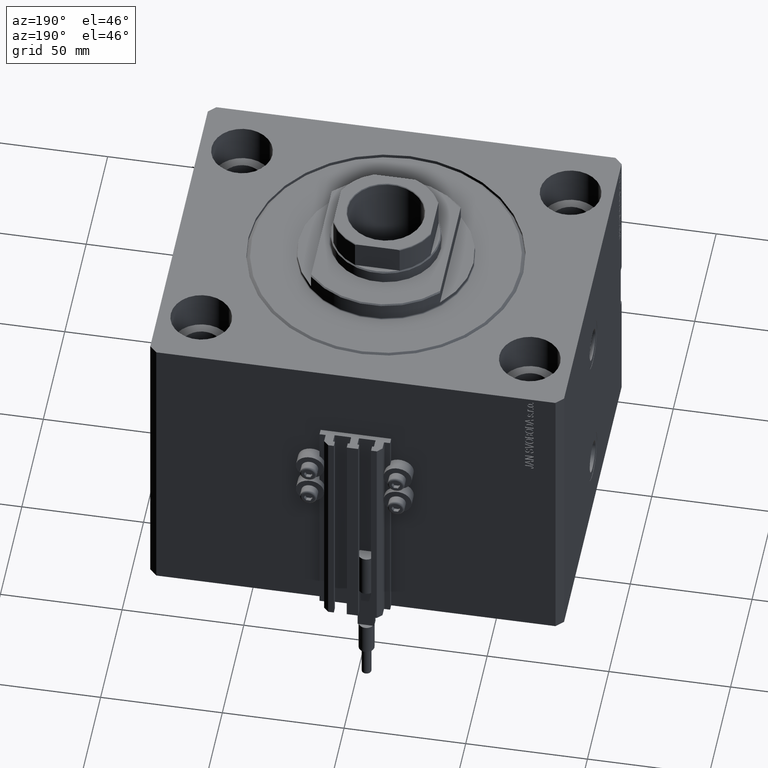
[diagram: clean part render]
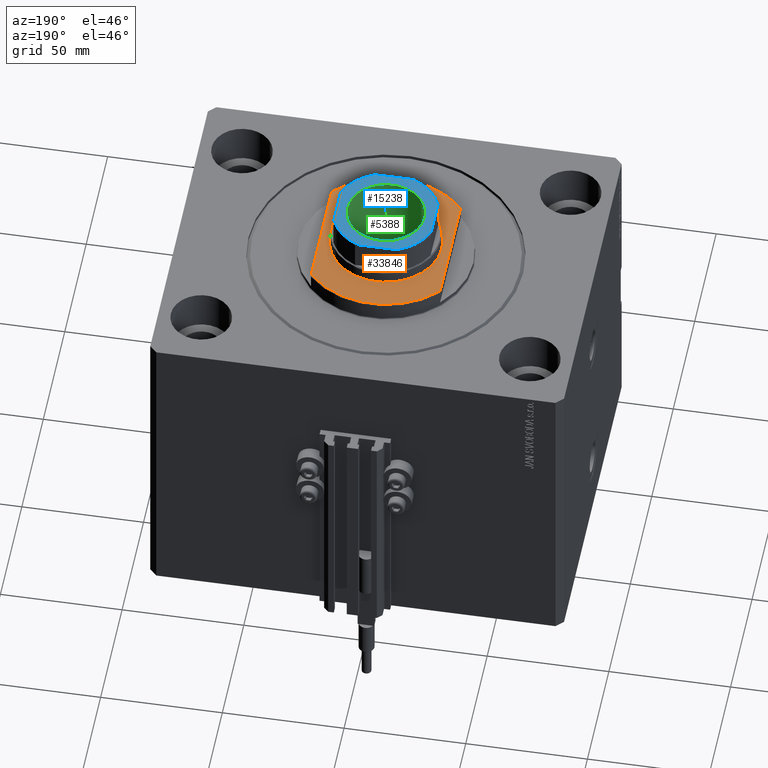
[diagram: same view with three faces highlighted in distinct colors, each labeled with its STEP entity id]
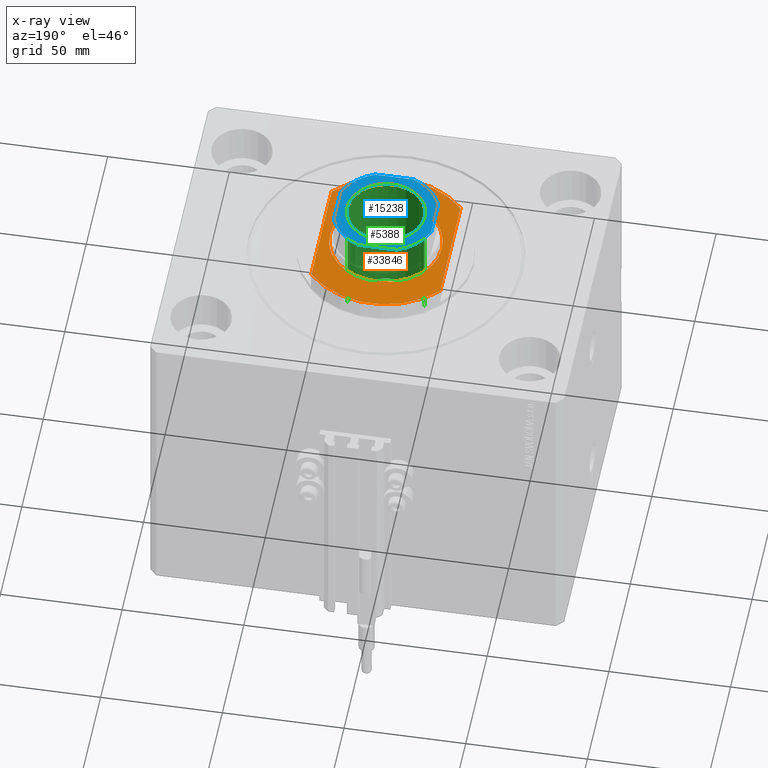
[diagram: x-ray of the same camera — body ghosted, the three highlighted faces saturated]
A machine part, auxiliary view with three faces highlighted in distinct colors.
The next image is the same camera in x-ray (body ghosted, the three faces saturated) — at least one of them is partly hidden behind the body in this view.
Their STEP definitions:

[orange] entity #33846 — the highlighted planar face has unit normal (0, 0, 1).
#3 = DIRECTION ( 'NONE',  ( -1.000000000000000000, 0.000000000000000000, 0.000000000000000000 ) ) ;
#1319 = CARTESIAN_POINT ( 'NONE',  ( -26.50000000000000711, -23.62202362203537476, -8.000000000000000000 ) ) ;
#2790 = VERTEX_POINT ( 'NONE', #43308 ) ;
#2889 = AXIS2_PLACEMENT_3D ( 'NONE', #12269, #5068, #13274 ) ;
#3676 = EDGE_LOOP ( 'NONE', ( #37982, #36277 ) ) ;
#5068 = DIRECTION ( 'NONE',  ( -0.000000000000000000, -0.000000000000000000, 1.000000000000000000 ) ) ;
#5283 = VECTOR ( 'NONE', #23781, 1000.000000000000000 ) ;
#5318 = AXIS2_PLACEMENT_3D ( 'NONE', #23989, #28210, #43403 ) ;
#6399 = DIRECTION ( 'NONE',  ( 0.000000000000000000, 0.000000000000000000, -1.000000000000000000 ) ) ;
#7327 = ORIENTED_EDGE ( 'NONE', *, *, #31949, .F. ) ;
#8385 = AXIS2_PLACEMENT_3D ( 'NONE', #36825, #10676, #14412 ) ;
#8567 = EDGE_CURVE ( 'NONE', #46461, #46454, #19574, .T. ) ;
#9284 = CIRCLE ( 'NONE', #41855, 35.49999999999996447 ) ;
#9834 = EDGE_CURVE ( 'NONE', #13793, #10834, #9284, .T. ) ;
#10676 = DIRECTION ( 'NONE',  ( -0.000000000000000000, -0.000000000000000000, 1.000000000000000000 ) ) ;
#10761 = CIRCLE ( 'NONE', #8385, 23.00000000000001776 ) ;
#10831 = CIRCLE ( 'NONE', #37853, 35.49999999999996447 ) ;
#10834 = VERTEX_POINT ( 'NONE', #1319 ) ;
#12264 = PLANE ( 'NONE',  #5318 ) ;
#12269 = CARTESIAN_POINT ( 'NONE',  ( 0.000000000000000000, 0.000000000000000000, -8.000000000000000000 ) ) ;
#12771 = FACE_OUTER_BOUND ( 'NONE', #46521, .T. ) ;
#13274 = DIRECTION ( 'NONE',  ( -1.000000000000000000, 0.000000000000000000, 0.000000000000000000 ) ) ;
#13546 = CARTESIAN_POINT ( 'NONE',  ( -26.50000000000000000, -36.36963018783666257, -8.000000000000000000 ) ) ;
#13793 = VERTEX_POINT ( 'NONE', #20600 ) ;
#14412 = DIRECTION ( 'NONE',  ( -1.000000000000000000, 0.000000000000000000, 0.000000000000000000 ) ) ;
#17590 = DIRECTION ( 'NONE',  ( -1.000000000000000000, 0.000000000000000000, 0.000000000000000000 ) ) ;
#17890 = CARTESIAN_POINT ( 'NONE',  ( 26.50000000000000000, 23.62202362203536765, -8.000000000000000000 ) ) ;
#19574 = CIRCLE ( 'NONE', #2889, 23.00000000000001776 ) ;
#20166 = ORIENTED_EDGE ( 'NONE', *, *, #31830, .T. ) ;
#20600 = CARTESIAN_POINT ( 'NONE',  ( 26.50000000000000000, -23.62202362203536765, -8.000000000000000000 ) ) ;
#21508 = DIRECTION ( 'NONE',  ( -0.000000000000000000, -1.000000000000000000, -0.000000000000000000 ) ) ;
#23781 = DIRECTION ( 'NONE',  ( 0.000000000000000000, -1.000000000000000000, -0.000000000000000000 ) ) ;
#23989 = CARTESIAN_POINT ( 'NONE',  ( 0.000000000000000000, 0.000000000000000000, -8.000000000000000000 ) ) ;
#27785 = ORIENTED_EDGE ( 'NONE', *, *, #32498, .T. ) ;
#28210 = DIRECTION ( 'NONE',  ( 0.000000000000000000, 0.000000000000000000, -1.000000000000000000 ) ) ;
#29748 = EDGE_CURVE ( 'NONE', #46454, #46461, #10761, .T. ) ;
#31830 = EDGE_CURVE ( 'NONE', #37996, #13793, #43440, .T. ) ;
#31949 = EDGE_CURVE ( 'NONE', #2790, #10834, #47658, .T. ) ;
#32498 = EDGE_CURVE ( 'NONE', #2790, #37996, #10831, .T. ) ;
#32633 = CARTESIAN_POINT ( 'NONE',  ( 0.000000000000000000, 0.000000000000000000, -8.000000000000000000 ) ) ;
#33269 = CARTESIAN_POINT ( 'NONE',  ( 23.00000000000001776, 2.816687638038914718E-15, -8.000000000000000000 ) ) ;
#33846 = ADVANCED_FACE ( 'NONE', ( #47118, #12771 ), #12264, .T. ) ;
#34105 = DIRECTION ( 'NONE',  ( 0.000000000000000000, 0.000000000000000000, -1.000000000000000000 ) ) ;
#36277 = ORIENTED_EDGE ( 'NONE', *, *, #29748, .T. ) ;
#36825 = CARTESIAN_POINT ( 'NONE',  ( 0.000000000000000000, 0.000000000000000000, -8.000000000000000000 ) ) ;
#37853 = AXIS2_PLACEMENT_3D ( 'NONE', #44962, #6399, #17590 ) ;
#37982 = ORIENTED_EDGE ( 'NONE', *, *, #8567, .T. ) ;
#37996 = VERTEX_POINT ( 'NONE', #17890 ) ;
#40969 = CARTESIAN_POINT ( 'NONE',  ( -23.00000000000001776, 0.000000000000000000, -8.000000000000000000 ) ) ;
#41855 = AXIS2_PLACEMENT_3D ( 'NONE', #32633, #34105, #3 ) ;
#43308 = CARTESIAN_POINT ( 'NONE',  ( -26.50000000000000000, 23.62202362203536765, -8.000000000000000000 ) ) ;
#43403 = DIRECTION ( 'NONE',  ( -1.000000000000000000, 0.000000000000000000, -0.000000000000000000 ) ) ;
#43440 = LINE ( 'NONE', #46667, #5283 ) ;
#43445 = ORIENTED_EDGE ( 'NONE', *, *, #9834, .T. ) ;
#44220 = VECTOR ( 'NONE', #21508, 1000.000000000000000 ) ;
#44962 = CARTESIAN_POINT ( 'NONE',  ( 0.000000000000000000, 0.000000000000000000, -8.000000000000000000 ) ) ;
#46454 = VERTEX_POINT ( 'NONE', #33269 ) ;
#46461 = VERTEX_POINT ( 'NONE', #40969 ) ;
#46521 = EDGE_LOOP ( 'NONE', ( #27785, #20166, #43445, #7327 ) ) ;
#46667 = CARTESIAN_POINT ( 'NONE',  ( 26.50000000000000000, -36.36963018783666257, -8.000000000000000000 ) ) ;
#47118 = FACE_BOUND ( 'NONE', #3676, .T. ) ;
#47658 = LINE ( 'NONE', #13546, #44220 ) ;

[blue] entity #15238 — the highlighted planar face has unit normal (0, 0, 1).
#321 = VECTOR ( 'NONE', #9315, 1000.000000000000000 ) ;
#379 = EDGE_CURVE ( 'NONE', #34334, #15274, #47395, .T. ) ;
#2142 = CARTESIAN_POINT ( 'NONE',  ( 20.00000000000000000, 7.889866919029748793, 126.1000000000000227 ) ) ;
#3726 = CARTESIAN_POINT ( 'NONE',  ( -20.00000000000000355, 20.00000000000000000, 126.1000000000000227 ) ) ;
#3923 = DIRECTION ( 'NONE',  ( 1.000000000000000000, 0.000000000000000000, 0.000000000000000000 ) ) ;
#4586 = VERTEX_POINT ( 'NONE', #16573 ) ;
#4641 = CARTESIAN_POINT ( 'NONE',  ( -20.00000000000000355, 20.00000000000000000, 126.1000000000000227 ) ) ;
#5019 = EDGE_CURVE ( 'NONE', #18066, #33093, #21928, .T. ) ;
#5396 = CARTESIAN_POINT ( 'NONE',  ( -20.00000000000000355, -7.889866919029736358, 126.1000000000000227 ) ) ;
#5532 = ORIENTED_EDGE ( 'NONE', *, *, #48096, .T. ) ;
#5832 = LINE ( 'NONE', #14012, #37139 ) ;
#6433 = DIRECTION ( 'NONE',  ( 1.000000000000000000, 0.000000000000000000, 0.000000000000000000 ) ) ;
#6854 = PLANE ( 'NONE',  #42852 ) ;
#7627 = LINE ( 'NONE', #4641, #29896 ) ;
#7940 = LINE ( 'NONE', #3726, #31346 ) ;
#8633 = ORIENTED_EDGE ( 'NONE', *, *, #5019, .T. ) ;
#8779 = ORIENTED_EDGE ( 'NONE', *, *, #16163, .T. ) ;
#9061 = DIRECTION ( 'NONE',  ( -0.000000000000000000, 0.000000000000000000, 1.000000000000000000 ) ) ;
#9315 = DIRECTION ( 'NONE',  ( 1.000000000000000000, 0.000000000000000000, 0.000000000000000000 ) ) ;
#9462 = VERTEX_POINT ( 'NONE', #5396 ) ;
#10345 = CARTESIAN_POINT ( 'NONE',  ( 0.000000000000000000, 0.000000000000000000, 126.1000000000000227 ) ) ;
#10713 = EDGE_CURVE ( 'NONE', #39298, #18066, #5832, .T. ) ;
#10818 = VERTEX_POINT ( 'NONE', #12234 ) ;
#10889 = CARTESIAN_POINT ( 'NONE',  ( 0.000000000000000000, 0.000000000000000000, 126.1000000000000227 ) ) ;
#11356 = DIRECTION ( 'NONE',  ( -1.000000000000000000, -0.000000000000000000, -0.000000000000000000 ) ) ;
#12234 = CARTESIAN_POINT ( 'NONE',  ( -16.04999999999997939, 1.965558112631499443E-15, 126.1000000000000227 ) ) ;
#12806 = ORIENTED_EDGE ( 'NONE', *, *, #31114, .T. ) ;
#13158 = DIRECTION ( 'NONE',  ( -0.000000000000000000, 0.000000000000000000, 1.000000000000000000 ) ) ;
#13358 = DIRECTION ( 'NONE',  ( 1.000000000000000000, 0.000000000000000000, 0.000000000000000000 ) ) ;
#13504 = CARTESIAN_POINT ( 'NONE',  ( 0.000000000000000000, 0.000000000000000000, 126.1000000000000227 ) ) ;
#13768 = CARTESIAN_POINT ( 'NONE',  ( -20.00000000000000000, -20.00000000000000000, 126.1000000000000227 ) ) ;
#14012 = CARTESIAN_POINT ( 'NONE',  ( 19.99999999999999645, 20.00000000000000000, 126.1000000000000227 ) ) ;
#15238 = ADVANCED_FACE ( 'NONE', ( #45184, #34224 ), #6854, .T. ) ;
#15274 = VERTEX_POINT ( 'NONE', #48919 ) ;
#15646 = ORIENTED_EDGE ( 'NONE', *, *, #10713, .T. ) ;
#16163 = EDGE_CURVE ( 'NONE', #4586, #10818, #44577, .T. ) ;
#16573 = CARTESIAN_POINT ( 'NONE',  ( 16.04999999999997939, 0.000000000000000000, 126.1000000000000227 ) ) ;
#16809 = CARTESIAN_POINT ( 'NONE',  ( -7.889866919029745240, 20.00000000000000000, 126.1000000000000227 ) ) ;
#17169 = AXIS2_PLACEMENT_3D ( 'NONE', #39554, #13158, #28094 ) ;
#17284 = EDGE_CURVE ( 'NONE', #10818, #4586, #36686, .T. ) ;
#18066 = VERTEX_POINT ( 'NONE', #2142 ) ;
#18283 = ORIENTED_EDGE ( 'NONE', *, *, #21477, .T. ) ;
#18339 = AXIS2_PLACEMENT_3D ( 'NONE', #10345, #25056, #13358 ) ;
#18548 = CIRCLE ( 'NONE', #30451, 21.50000000000000000 ) ;
#19035 = AXIS2_PLACEMENT_3D ( 'NONE', #27984, #9061, #39933 ) ;
#19378 = DIRECTION ( 'NONE',  ( 8.673617379884035472E-17, -1.000000000000000000, 0.000000000000000000 ) ) ;
#19722 = CARTESIAN_POINT ( 'NONE',  ( -20.00000000000000355, 7.889866919029741688, 126.1000000000000227 ) ) ;
#21477 = EDGE_CURVE ( 'NONE', #15274, #39298, #18548, .T. ) ;
#21928 = CIRCLE ( 'NONE', #17169, 21.50000000000000000 ) ;
#22045 = DIRECTION ( 'NONE',  ( 1.000000000000000000, 0.000000000000000000, 0.000000000000000000 ) ) ;
#22210 = CIRCLE ( 'NONE', #28574, 21.50000000000000000 ) ;
#23856 = CIRCLE ( 'NONE', #19035, 21.50000000000000000 ) ;
#24912 = VERTEX_POINT ( 'NONE', #16809 ) ;
#25056 = DIRECTION ( 'NONE',  ( 0.000000000000000000, -0.000000000000000000, -1.000000000000000000 ) ) ;
#27984 = CARTESIAN_POINT ( 'NONE',  ( 0.000000000000000000, 0.000000000000000000, 126.1000000000000227 ) ) ;
#28094 = DIRECTION ( 'NONE',  ( 1.000000000000000000, 0.000000000000000000, 0.000000000000000000 ) ) ;
#28574 = AXIS2_PLACEMENT_3D ( 'NONE', #38019, #29567, #3923 ) ;
#28931 = DIRECTION ( 'NONE',  ( 0.000000000000000000, -0.000000000000000000, -1.000000000000000000 ) ) ;
#28965 = DIRECTION ( 'NONE',  ( -1.734723475976807094E-16, 1.000000000000000000, -0.000000000000000000 ) ) ;
#29567 = DIRECTION ( 'NONE',  ( -0.000000000000000000, 0.000000000000000000, 1.000000000000000000 ) ) ;
#29665 = CARTESIAN_POINT ( 'NONE',  ( 7.889866919029743464, 20.00000000000000000, 126.1000000000000227 ) ) ;
#29896 = VECTOR ( 'NONE', #11356, 1000.000000000000000 ) ;
#30451 = AXIS2_PLACEMENT_3D ( 'NONE', #10889, #36794, #6433 ) ;
#31114 = EDGE_CURVE ( 'NONE', #33093, #24912, #7627, .T. ) ;
#31346 = VECTOR ( 'NONE', #19378, 1000.000000000000000 ) ;
#32076 = EDGE_LOOP ( 'NONE', ( #5532, #38440, #36046, #18283, #15646, #8633, #12806, #33080 ) ) ;
#33080 = ORIENTED_EDGE ( 'NONE', *, *, #43828, .T. ) ;
#33093 = VERTEX_POINT ( 'NONE', #29665 ) ;
#34224 = FACE_OUTER_BOUND ( 'NONE', #32076, .T. ) ;
#34334 = VERTEX_POINT ( 'NONE', #43944 ) ;
#34748 = CARTESIAN_POINT ( 'NONE',  ( 20.00000000000000000, -7.889866919029739911, 126.1000000000000227 ) ) ;
#36046 = ORIENTED_EDGE ( 'NONE', *, *, #379, .T. ) ;
#36686 = CIRCLE ( 'NONE', #37465, 16.04999999999997939 ) ;
#36734 = VERTEX_POINT ( 'NONE', #19722 ) ;
#36794 = DIRECTION ( 'NONE',  ( -0.000000000000000000, 0.000000000000000000, 1.000000000000000000 ) ) ;
#37139 = VECTOR ( 'NONE', #28965, 1000.000000000000000 ) ;
#37465 = AXIS2_PLACEMENT_3D ( 'NONE', #13504, #28931, #40615 ) ;
#38019 = CARTESIAN_POINT ( 'NONE',  ( 0.000000000000000000, 0.000000000000000000, 126.1000000000000227 ) ) ;
#38306 = EDGE_LOOP ( 'NONE', ( #8779, #43682 ) ) ;
#38440 = ORIENTED_EDGE ( 'NONE', *, *, #42803, .T. ) ;
#39298 = VERTEX_POINT ( 'NONE', #34748 ) ;
#39554 = CARTESIAN_POINT ( 'NONE',  ( 0.000000000000000000, 0.000000000000000000, 126.1000000000000227 ) ) ;
#39933 = DIRECTION ( 'NONE',  ( 1.000000000000000000, 0.000000000000000000, 0.000000000000000000 ) ) ;
#40615 = DIRECTION ( 'NONE',  ( 1.000000000000000000, 0.000000000000000000, 0.000000000000000000 ) ) ;
#41934 = CARTESIAN_POINT ( 'NONE',  ( 0.000000000000000000, 0.000000000000000000, 126.1000000000000227 ) ) ;
#42803 = EDGE_CURVE ( 'NONE', #9462, #34334, #22210, .T. ) ;
#42852 = AXIS2_PLACEMENT_3D ( 'NONE', #41934, #44935, #22045 ) ;
#43682 = ORIENTED_EDGE ( 'NONE', *, *, #17284, .T. ) ;
#43828 = EDGE_CURVE ( 'NONE', #24912, #36734, #23856, .T. ) ;
#43944 = CARTESIAN_POINT ( 'NONE',  ( -7.889866919029745240, -20.00000000000000000, 126.1000000000000227 ) ) ;
#44577 = CIRCLE ( 'NONE', #18339, 16.04999999999997939 ) ;
#44935 = DIRECTION ( 'NONE',  ( -0.000000000000000000, 0.000000000000000000, 1.000000000000000000 ) ) ;
#45184 = FACE_BOUND ( 'NONE', #38306, .T. ) ;
#47395 = LINE ( 'NONE', #13768, #321 ) ;
#48096 = EDGE_CURVE ( 'NONE', #36734, #9462, #7940, .T. ) ;
#48919 = CARTESIAN_POINT ( 'NONE',  ( 7.889866919029745240, -20.00000000000000000, 126.1000000000000227 ) ) ;

[green] entity #5388 — the highlighted cylindrical surface (partial cylindrical patch) has radius 15.75 mm, axis along (0, 0, 1).
#312 = EDGE_CURVE ( 'NONE', #9525, #7155, #45426, .T. ) ;
#2635 = DIRECTION ( 'NONE',  ( -0.000000000000000000, -0.000000000000000000, 1.000000000000000000 ) ) ;
#2897 = EDGE_CURVE ( 'NONE', #4617, #9525, #38557, .T. ) ;
#3588 = AXIS2_PLACEMENT_3D ( 'NONE', #25282, #2635, #32992 ) ;
#4174 = ORIENTED_EDGE ( 'NONE', *, *, #43491, .T. ) ;
#4617 = VERTEX_POINT ( 'NONE', #46695 ) ;
#4670 = DIRECTION ( 'NONE',  ( 0.000000000000000000, 0.000000000000000000, 1.000000000000000000 ) ) ;
#5388 = ADVANCED_FACE ( 'NONE', ( #10086 ), #36726, .F. ) ;
#6929 = DIRECTION ( 'NONE',  ( 1.000000000000000000, 0.000000000000000000, 0.000000000000000000 ) ) ;
#7155 = VERTEX_POINT ( 'NONE', #21574 ) ;
#9496 = AXIS2_PLACEMENT_3D ( 'NONE', #31046, #4670, #42491 ) ;
#9525 = VERTEX_POINT ( 'NONE', #25766 ) ;
#10086 = FACE_OUTER_BOUND ( 'NONE', #27102, .T. ) ;
#13845 = VECTOR ( 'NONE', #45188, 1000.000000000000000 ) ;
#14234 = CIRCLE ( 'NONE', #9496, 15.74999999999999289 ) ;
#14704 = AXIS2_PLACEMENT_3D ( 'NONE', #44526, #45011, #6929 ) ;
#15311 = ORIENTED_EDGE ( 'NONE', *, *, #312, .F. ) ;
#15685 = CARTESIAN_POINT ( 'NONE',  ( -15.74999999999999289, 1.928818708657080556E-15, 126.1000000000000227 ) ) ;
#21574 = CARTESIAN_POINT ( 'NONE',  ( 15.74999999999999289, 0.000000000000000000, 125.8000000000000256 ) ) ;
#25282 = CARTESIAN_POINT ( 'NONE',  ( 0.000000000000000000, 0.000000000000000000, 126.1000000000000227 ) ) ;
#25766 = CARTESIAN_POINT ( 'NONE',  ( 15.74999999999998934, 0.000000000000000000, 71.10000000000002274 ) ) ;
#27102 = EDGE_LOOP ( 'NONE', ( #44075, #47806, #4174, #15311 ) ) ;
#30446 = VECTOR ( 'NONE', #31113, 1000.000000000000000 ) ;
#31046 = CARTESIAN_POINT ( 'NONE',  ( 0.000000000000000000, 0.000000000000000000, 125.8000000000000256 ) ) ;
#31113 = DIRECTION ( 'NONE',  ( -0.000000000000000000, -0.000000000000000000, 1.000000000000000000 ) ) ;
#32992 = DIRECTION ( 'NONE',  ( 1.000000000000000000, 0.000000000000000000, 0.000000000000000000 ) ) ;
#36726 = CYLINDRICAL_SURFACE ( 'NONE', #3588, 15.74999999999999289 ) ;
#38557 = CIRCLE ( 'NONE', #14704, 15.74999999999998934 ) ;
#40845 = VERTEX_POINT ( 'NONE', #42354 ) ;
#42354 = CARTESIAN_POINT ( 'NONE',  ( -15.74999999999999289, 1.928818708657080556E-15, 125.8000000000000256 ) ) ;
#42491 = DIRECTION ( 'NONE',  ( 1.000000000000000000, 0.000000000000000000, 0.000000000000000000 ) ) ;
#43060 = LINE ( 'NONE', #15685, #30446 ) ;
#43491 = EDGE_CURVE ( 'NONE', #40845, #7155, #14234, .T. ) ;
#44075 = ORIENTED_EDGE ( 'NONE', *, *, #2897, .F. ) ;
#44526 = CARTESIAN_POINT ( 'NONE',  ( 0.000000000000000000, 0.000000000000000000, 71.10000000000002274 ) ) ;
#45011 = DIRECTION ( 'NONE',  ( -0.000000000000000000, -0.000000000000000000, 1.000000000000000000 ) ) ;
#45188 = DIRECTION ( 'NONE',  ( -0.000000000000000000, -0.000000000000000000, 1.000000000000000000 ) ) ;
#45426 = LINE ( 'NONE', #48671, #13845 ) ;
#45947 = EDGE_CURVE ( 'NONE', #4617, #40845, #43060, .T. ) ;
#46695 = CARTESIAN_POINT ( 'NONE',  ( -15.74999999999998934, 1.928818708657080161E-15, 71.10000000000002274 ) ) ;
#47806 = ORIENTED_EDGE ( 'NONE', *, *, #45947, .T. ) ;
#48671 = CARTESIAN_POINT ( 'NONE',  ( 15.74999999999999289, 0.000000000000000000, 126.1000000000000227 ) ) ;